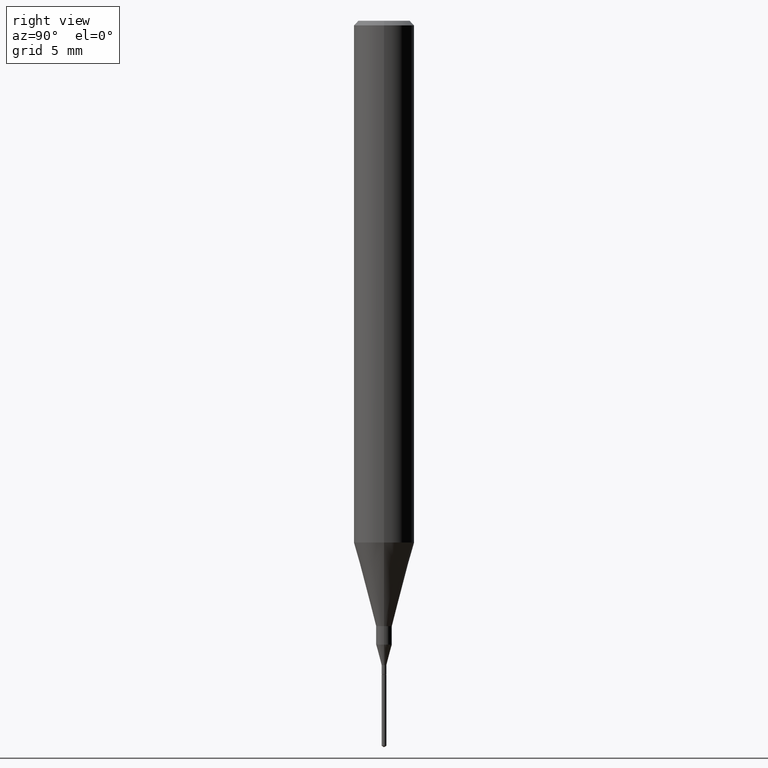
[diagram: clean part render]
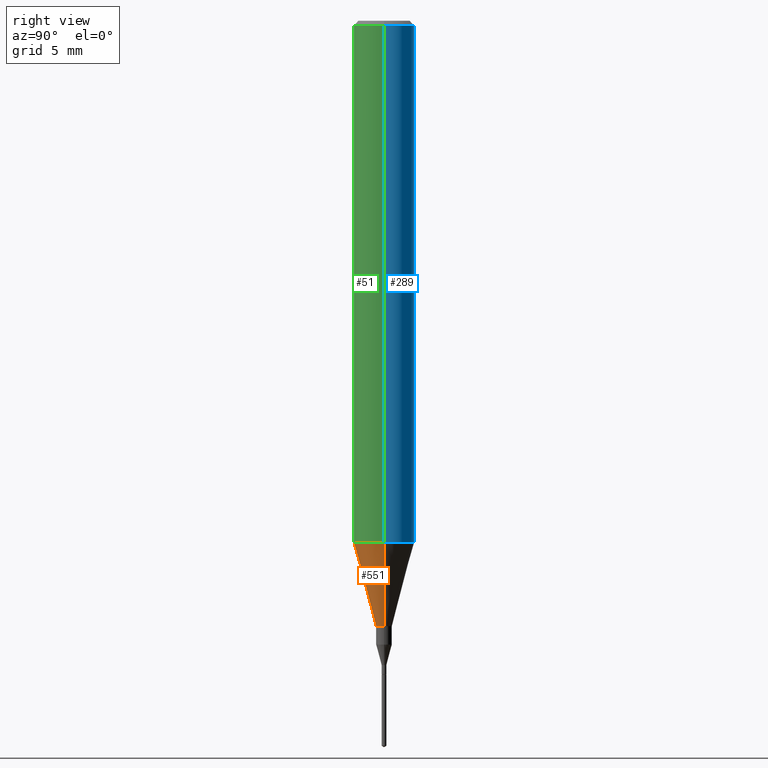
[diagram: same view with three faces highlighted in distinct colors, each labeled with its STEP entity id]
A machine part, right view with three faces highlighted in distinct colors.
Their STEP definitions:

[orange] entity #551 — the highlighted conical surface has half-angle 15 deg.
#32 = CARTESIAN_POINT ( 'NONE',  ( 2.634730117954813298E-29, -3.761696332605275695E-15, -1.077392650149939346 ) ) ;
#49 = CARTESIAN_POINT ( 'NONE',  ( 3.056836007731421306E-29, -4.364351673553932471E-15, -1.250000000000000000 ) ) ;
#55 = LINE ( 'NONE', #234, #418 ) ;
#68 = DIRECTION ( 'NONE',  ( 1.000000000000000000, -6.982962677686264344E-15, 0.000000000000000000 ) ) ;
#96 = EDGE_LOOP ( 'NONE', ( #482, #117, #270, #180 ) ) ;
#105 = CARTESIAN_POINT ( 'NONE',  ( 2.634730117954813298E-29, -3.761696332605275695E-15, -1.077392650149939346 ) ) ;
#114 = VERTEX_POINT ( 'NONE', #151 ) ;
#115 = DIRECTION ( 'NONE',  ( -2.445468806185136597E-29, 3.491481338843145583E-15, 1.000000000000000000 ) ) ;
#117 = ORIENTED_EDGE ( 'NONE', *, *, #197, .T. ) ;
#145 = DIRECTION ( 'NONE',  ( -2.445468806185136597E-29, 3.491481338843145583E-15, 1.000000000000000000 ) ) ;
#146 = EDGE_CURVE ( 'NONE', #476, #373, #55, .T. ) ;
#151 = CARTESIAN_POINT ( 'NONE',  ( 0.01624999999999999709, -4.477824817066334148E-15, -1.250000000000000000 ) ) ;
#152 = CARTESIAN_POINT ( 'NONE',  ( -0.01624999999999999709, -4.315298589681791643E-15, -1.250000000000000000 ) ) ;
#160 = DIRECTION ( 'NONE',  ( -0.2588190451025214611, 5.211531920934551042E-15, 0.9659258262890682012 ) ) ;
#180 = ORIENTED_EDGE ( 'NONE', *, *, #578, .F. ) ;
#195 = CONICAL_SURFACE ( 'NONE', #402, 0.06250000000000012490, 0.2617993877991501295 ) ;
#197 = EDGE_CURVE ( 'NONE', #476, #114, #536, .T. ) ;
#234 = CARTESIAN_POINT ( 'NONE',  ( -0.06250000000000012490, -3.317607122755211895E-15, -1.077392650149939346 ) ) ;
#260 = VERTEX_POINT ( 'NONE', #475 ) ;
#270 = ORIENTED_EDGE ( 'NONE', *, *, #365, .T. ) ;
#285 = AXIS2_PLACEMENT_3D ( 'NONE', #105, #115, #480 ) ;
#290 = VECTOR ( 'NONE', #349, 39.37007874015747433 ) ;
#303 = AXIS2_PLACEMENT_3D ( 'NONE', #49, #145, #424 ) ;
#328 = CIRCLE ( 'NONE', #285, 0.06250000000000012490 ) ;
#349 = DIRECTION ( 'NONE',  ( 0.2588190451025214611, 1.565188264969621573E-15, 0.9659258262890682012 ) ) ;
#365 = EDGE_CURVE ( 'NONE', #114, #260, #559, .T. ) ;
#373 = VERTEX_POINT ( 'NONE', #521 ) ;
#388 = DIRECTION ( 'NONE',  ( -2.445468806185136597E-29, 3.491481338843145583E-15, 1.000000000000000000 ) ) ;
#402 = AXIS2_PLACEMENT_3D ( 'NONE', #32, #388, #68 ) ;
#418 = VECTOR ( 'NONE', #160, 39.37007874015747433 ) ;
#424 = DIRECTION ( 'NONE',  ( 1.000000000000000000, -6.982962677686288799E-15, 0.000000000000000000 ) ) ;
#475 = CARTESIAN_POINT ( 'NONE',  ( 0.06250000000000012490, -4.198131499960668153E-15, -1.077392650149939346 ) ) ;
#476 = VERTEX_POINT ( 'NONE', #152 ) ;
#480 = DIRECTION ( 'NONE',  ( 1.000000000000000000, -6.982962677686264344E-15, 0.000000000000000000 ) ) ;
#482 = ORIENTED_EDGE ( 'NONE', *, *, #146, .F. ) ;
#521 = CARTESIAN_POINT ( 'NONE',  ( -0.06250000000000012490, -3.317607122755211895E-15, -1.077392650149939346 ) ) ;
#530 = CARTESIAN_POINT ( 'NONE',  ( 0.06250000000000012490, -4.198131499960668153E-15, -1.077392650149939346 ) ) ;
#536 = CIRCLE ( 'NONE', #303, 0.01624999999999999709 ) ;
#551 = ADVANCED_FACE ( 'NONE', ( #570 ), #195, .T. ) ;
#559 = LINE ( 'NONE', #530, #290 ) ;
#570 = FACE_OUTER_BOUND ( 'NONE', #96, .T. ) ;
#578 = EDGE_CURVE ( 'NONE', #373, #260, #328, .T. ) ;

[blue] entity #289 — the highlighted cylindrical surface (edge-blend (fillet) strip) has radius 1.5875 mm, axis along (-0, 0, 1).
#5 = EDGE_CURVE ( 'NONE', #267, #574, #358, .T. ) ;
#106 = CARTESIAN_POINT ( 'NONE',  ( 2.292627005798580186E-31, -3.273263755165469568E-17, -0.009375000000000058634 ) ) ;
#124 = EDGE_LOOP ( 'NONE', ( #397, #488, #140, #218 ) ) ;
#140 = ORIENTED_EDGE ( 'NONE', *, *, #5, .F. ) ;
#143 = AXIS2_PLACEMENT_3D ( 'NONE', #322, #585, #335 ) ;
#162 = CIRCLE ( 'NONE', #143, 0.06250000000000012490 ) ;
#175 = AXIS2_PLACEMENT_3D ( 'NONE', #106, #191, #250 ) ;
#191 = DIRECTION ( 'NONE',  ( -2.445468806185136597E-29, 3.491481338843145583E-15, 1.000000000000000000 ) ) ;
#217 = AXIS2_PLACEMENT_3D ( 'NONE', #563, #484, #251 ) ;
#218 = ORIENTED_EDGE ( 'NONE', *, *, #220, .F. ) ;
#220 = EDGE_CURVE ( 'NONE', #260, #267, #448, .T. ) ;
#250 = DIRECTION ( 'NONE',  ( 1.000000000000000000, -6.982962677686266711E-15, 0.000000000000000000 ) ) ;
#251 = DIRECTION ( 'NONE',  ( 1.000000000000000000, -6.982962677686266711E-15, 4.876176775795935793E-29 ) ) ;
#259 = LINE ( 'NONE', #449, #464 ) ;
#260 = VERTEX_POINT ( 'NONE', #475 ) ;
#267 = VERTEX_POINT ( 'NONE', #572 ) ;
#289 = ADVANCED_FACE ( 'NONE', ( #446 ), #487, .T. ) ;
#301 = DIRECTION ( 'NONE',  ( -2.445468806185136877E-29, 3.491481338843145188E-15, 1.000000000000000000 ) ) ;
#322 = CARTESIAN_POINT ( 'NONE',  ( 2.634730117954813298E-29, -3.761696332605275695E-15, -1.077392650149939346 ) ) ;
#335 = DIRECTION ( 'NONE',  ( 1.000000000000000000, -6.982962677686264344E-15, 0.000000000000000000 ) ) ;
#358 = CIRCLE ( 'NONE', #175, 0.06250000000000000000 ) ;
#373 = VERTEX_POINT ( 'NONE', #521 ) ;
#397 = ORIENTED_EDGE ( 'NONE', *, *, #508, .T. ) ;
#401 = CARTESIAN_POINT ( 'NONE',  ( 0.06250000000000006939, -4.364351673553921624E-16, 3.047610484872463374E-30 ) ) ;
#446 = FACE_OUTER_BOUND ( 'NONE', #124, .T. ) ;
#448 = LINE ( 'NONE', #401, #479 ) ;
#449 = CARTESIAN_POINT ( 'NONE',  ( -0.06250000000000006939, 4.440892098500631092E-16, -3.074334431409319267E-30 ) ) ;
#464 = VECTOR ( 'NONE', #483, 39.37007874015748143 ) ;
#475 = CARTESIAN_POINT ( 'NONE',  ( 0.06250000000000012490, -4.198131499960668153E-15, -1.077392650149939346 ) ) ;
#479 = VECTOR ( 'NONE', #301, 39.37007874015748143 ) ;
#483 = DIRECTION ( 'NONE',  ( -2.445468806185136877E-29, 3.491481338843145188E-15, 1.000000000000000000 ) ) ;
#484 = DIRECTION ( 'NONE',  ( -2.445468806185136597E-29, 3.491481338843145583E-15, 1.000000000000000000 ) ) ;
#487 = CYLINDRICAL_SURFACE ( 'NONE', #217, 0.06250000000000006939 ) ;
#488 = ORIENTED_EDGE ( 'NONE', *, *, #546, .T. ) ;
#508 = EDGE_CURVE ( 'NONE', #260, #373, #162, .T. ) ;
#521 = CARTESIAN_POINT ( 'NONE',  ( -0.06250000000000012490, -3.317607122755211895E-15, -1.077392650149939346 ) ) ;
#526 = CARTESIAN_POINT ( 'NONE',  ( -0.06250000000000000000, -1.453125275228401137E-15, -0.009375000000000058634 ) ) ;
#546 = EDGE_CURVE ( 'NONE', #373, #574, #259, .T. ) ;
#563 = CARTESIAN_POINT ( 'NONE',  ( 0.000000000000000000, 0.000000000000000000, 0.000000000000000000 ) ) ;
#572 = CARTESIAN_POINT ( 'NONE',  ( 0.06250000000000000000, -4.691678049070463404E-16, -0.009375000000000058634 ) ) ;
#574 = VERTEX_POINT ( 'NONE', #526 ) ;
#585 = DIRECTION ( 'NONE',  ( -2.445468806185136597E-29, 3.491481338843145583E-15, 1.000000000000000000 ) ) ;

[green] entity #51 — the highlighted cylindrical surface (edge-blend (fillet) strip) has radius 1.5875 mm, axis along (-0, 0, 1).
#1 = ORIENTED_EDGE ( 'NONE', *, *, #220, .T. ) ;
#51 = ADVANCED_FACE ( 'NONE', ( #431 ), #284, .T. ) ;
#59 = DIRECTION ( 'NONE',  ( -2.445468806185136597E-29, 3.491481338843145583E-15, 1.000000000000000000 ) ) ;
#104 = DIRECTION ( 'NONE',  ( 1.000000000000000000, -6.982962677686266711E-15, 4.876176775795935793E-29 ) ) ;
#105 = CARTESIAN_POINT ( 'NONE',  ( 2.634730117954813298E-29, -3.761696332605275695E-15, -1.077392650149939346 ) ) ;
#115 = DIRECTION ( 'NONE',  ( -2.445468806185136597E-29, 3.491481338843145583E-15, 1.000000000000000000 ) ) ;
#220 = EDGE_CURVE ( 'NONE', #260, #267, #448, .T. ) ;
#226 = ORIENTED_EDGE ( 'NONE', *, *, #470, .F. ) ;
#240 = DIRECTION ( 'NONE',  ( 1.000000000000000000, -6.982962677686266711E-15, 0.000000000000000000 ) ) ;
#259 = LINE ( 'NONE', #449, #464 ) ;
#260 = VERTEX_POINT ( 'NONE', #475 ) ;
#267 = VERTEX_POINT ( 'NONE', #572 ) ;
#284 = CYLINDRICAL_SURFACE ( 'NONE', #535, 0.06250000000000006939 ) ;
#285 = AXIS2_PLACEMENT_3D ( 'NONE', #105, #115, #480 ) ;
#301 = DIRECTION ( 'NONE',  ( -2.445468806185136877E-29, 3.491481338843145188E-15, 1.000000000000000000 ) ) ;
#323 = CIRCLE ( 'NONE', #561, 0.06250000000000000000 ) ;
#328 = CIRCLE ( 'NONE', #285, 0.06250000000000012490 ) ;
#366 = EDGE_LOOP ( 'NONE', ( #490, #447, #1, #226 ) ) ;
#373 = VERTEX_POINT ( 'NONE', #521 ) ;
#383 = CARTESIAN_POINT ( 'NONE',  ( 2.292627005798580186E-31, -3.273263755165469568E-17, -0.009375000000000058634 ) ) ;
#389 = CARTESIAN_POINT ( 'NONE',  ( 0.000000000000000000, 0.000000000000000000, 0.000000000000000000 ) ) ;
#401 = CARTESIAN_POINT ( 'NONE',  ( 0.06250000000000006939, -4.364351673553921624E-16, 3.047610484872463374E-30 ) ) ;
#428 = DIRECTION ( 'NONE',  ( -2.445468806185136597E-29, 3.491481338843145583E-15, 1.000000000000000000 ) ) ;
#431 = FACE_OUTER_BOUND ( 'NONE', #366, .T. ) ;
#447 = ORIENTED_EDGE ( 'NONE', *, *, #578, .T. ) ;
#448 = LINE ( 'NONE', #401, #479 ) ;
#449 = CARTESIAN_POINT ( 'NONE',  ( -0.06250000000000006939, 4.440892098500631092E-16, -3.074334431409319267E-30 ) ) ;
#464 = VECTOR ( 'NONE', #483, 39.37007874015748143 ) ;
#470 = EDGE_CURVE ( 'NONE', #574, #267, #323, .T. ) ;
#475 = CARTESIAN_POINT ( 'NONE',  ( 0.06250000000000012490, -4.198131499960668153E-15, -1.077392650149939346 ) ) ;
#479 = VECTOR ( 'NONE', #301, 39.37007874015748143 ) ;
#480 = DIRECTION ( 'NONE',  ( 1.000000000000000000, -6.982962677686264344E-15, 0.000000000000000000 ) ) ;
#483 = DIRECTION ( 'NONE',  ( -2.445468806185136877E-29, 3.491481338843145188E-15, 1.000000000000000000 ) ) ;
#490 = ORIENTED_EDGE ( 'NONE', *, *, #546, .F. ) ;
#521 = CARTESIAN_POINT ( 'NONE',  ( -0.06250000000000012490, -3.317607122755211895E-15, -1.077392650149939346 ) ) ;
#526 = CARTESIAN_POINT ( 'NONE',  ( -0.06250000000000000000, -1.453125275228401137E-15, -0.009375000000000058634 ) ) ;
#535 = AXIS2_PLACEMENT_3D ( 'NONE', #389, #428, #104 ) ;
#546 = EDGE_CURVE ( 'NONE', #373, #574, #259, .T. ) ;
#561 = AXIS2_PLACEMENT_3D ( 'NONE', #383, #59, #240 ) ;
#572 = CARTESIAN_POINT ( 'NONE',  ( 0.06250000000000000000, -4.691678049070463404E-16, -0.009375000000000058634 ) ) ;
#574 = VERTEX_POINT ( 'NONE', #526 ) ;
#578 = EDGE_CURVE ( 'NONE', #373, #260, #328, .T. ) ;